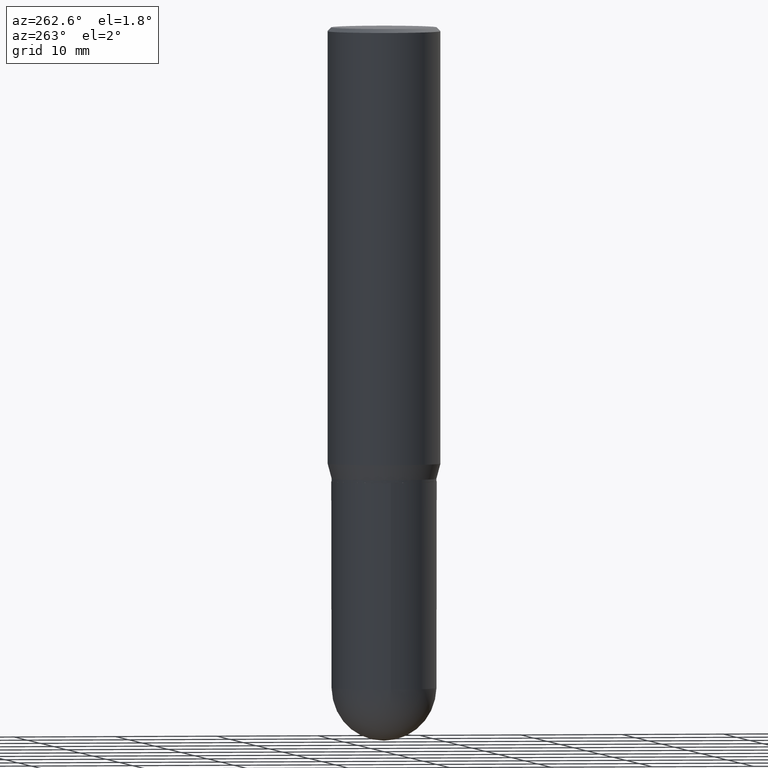
[diagram: clean part render]
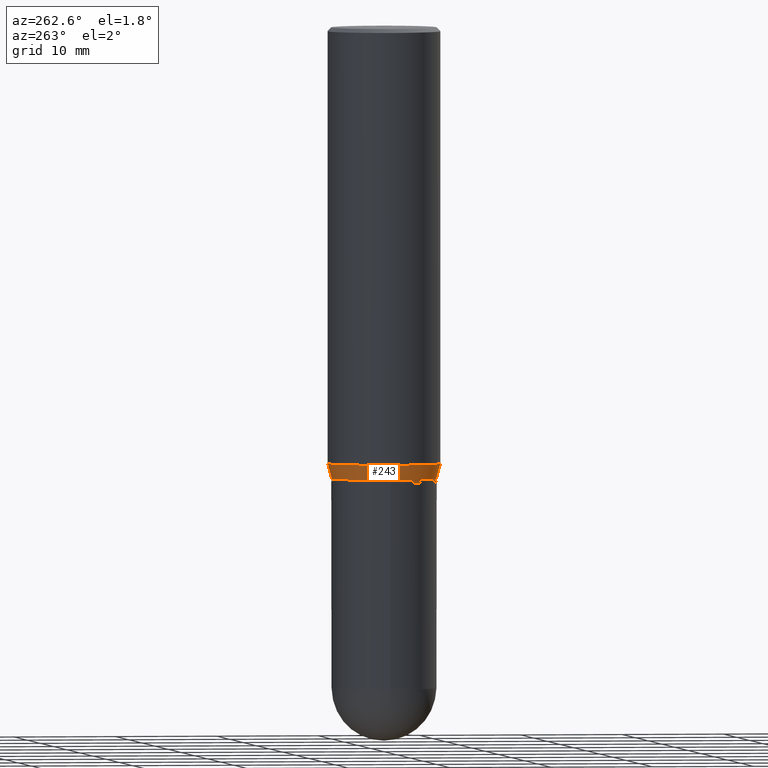
[diagram: same view with one face highlighted and labeled with its STEP entity id]
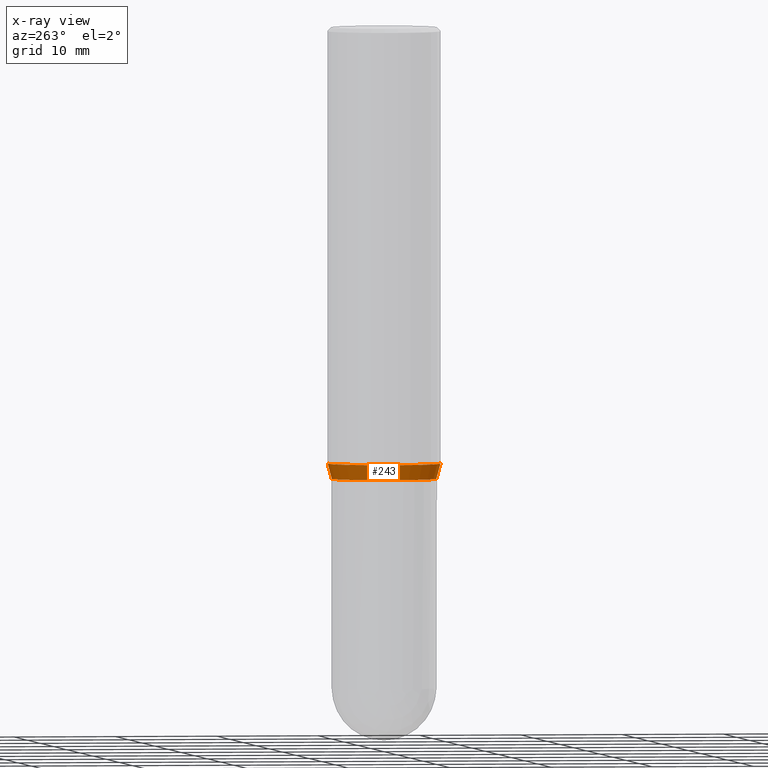
[diagram: x-ray of the same camera — body ghosted, the highlighted face saturated]
A machine part, auxiliary view. The second image highlights one B-rep face of the part: STEP entity #243.
The next image is the same camera in x-ray: the body ghosted, the highlighted face saturated — about 0% of this face is hidden behind the body in this view.
In plain terms, the highlighted conical surface has half-angle 15 deg.
Its self-contained STEP definition (entity closure, byte-faithful):
#5 = VERTEX_POINT ( 'NONE', #112 ) ;
#23 = DIRECTION ( 'NONE',  ( -6.982962677686265133E-15, -1.000000000000000000, 3.746534391310989557E-15 ) ) ;
#33 = EDGE_LOOP ( 'NONE', ( #324, #127, #103, #170 ) ) ;
#73 = CARTESIAN_POINT ( 'NONE',  ( 1.443112296328805307E-15, 0.2030999999999938688, -1.740000000000000879 ) ) ;
#94 = EDGE_CURVE ( 'NONE', #430, #100, #268, .T. ) ;
#100 = VERTEX_POINT ( 'NONE', #177 ) ;
#102 = CARTESIAN_POINT ( 'NONE',  ( -1.418239719838037782E-15, -0.2031000000000060257, -1.739999999999999103 ) ) ;
#103 = ORIENTED_EDGE ( 'NONE', *, *, #201, .T. ) ;
#104 = EDGE_CURVE ( 'NONE', #100, #279, #316, .T. ) ;
#112 = CARTESIAN_POINT ( 'NONE',  ( -1.418239719838037782E-15, -0.2031000000000060257, -1.739999999999999103 ) ) ;
#127 = ORIENTED_EDGE ( 'NONE', *, *, #269, .T. ) ;
#157 = DIRECTION ( 'NONE',  ( -6.982962677686266711E-15, -1.000000000000000000, 4.035225987687243463E-15 ) ) ;
#164 = AXIS2_PLACEMENT_3D ( 'NONE', #174, #457, #23 ) ;
#170 = ORIENTED_EDGE ( 'NONE', *, *, #104, .F. ) ;
#174 = CARTESIAN_POINT ( 'NONE',  ( 4.112392974780617648E-29, -5.871096244226413980E-15, -1.681593404861546848 ) ) ;
#177 = CARTESIAN_POINT ( 'NONE',  ( 1.554312234475260177E-15, 0.2187499999999941436, -1.681593404861547736 ) ) ;
#189 = VECTOR ( 'NONE', #427, 39.37007874015748854 ) ;
#196 = CARTESIAN_POINT ( 'NONE',  ( -1.527523085743829428E-15, -0.2187500000000058287, -1.681593404861545960 ) ) ;
#200 = VECTOR ( 'NONE', #378, 39.37007874015748143 ) ;
#201 = EDGE_CURVE ( 'NONE', #5, #279, #256, .T. ) ;
#218 = AXIS2_PLACEMENT_3D ( 'NONE', #465, #392, #350 ) ;
#243 = ADVANCED_FACE ( 'NONE', ( #390 ), #367, .T. ) ;
#256 = LINE ( 'NONE', #102, #189 ) ;
#268 = LINE ( 'NONE', #73, #200 ) ;
#269 = EDGE_CURVE ( 'NONE', #430, #5, #445, .T. ) ;
#279 = VERTEX_POINT ( 'NONE', #196 ) ;
#316 = CIRCLE ( 'NONE', #164, 0.2187500000000000000 ) ;
#324 = ORIENTED_EDGE ( 'NONE', *, *, #94, .F. ) ;
#350 = DIRECTION ( 'NONE',  ( -6.982962677686266711E-15, -1.000000000000000000, 4.035225987687243463E-15 ) ) ;
#367 = CONICAL_SURFACE ( 'NONE', #506, 0.2030999999999999472, 0.2617993877991492413 ) ;
#378 = DIRECTION ( 'NONE',  ( 1.839019923739593216E-15, 0.2588190451025239591, 0.9659258262890674240 ) ) ;
#390 = FACE_OUTER_BOUND ( 'NONE', #33, .T. ) ;
#392 = DIRECTION ( 'NONE',  ( -2.445533482048360723E-29, 3.491388719325887151E-15, 1.000000000000000000 ) ) ;
#427 = DIRECTION ( 'NONE',  ( -1.807323732225323040E-15, -0.2588190451025171868, 0.9659258262890693114 ) ) ;
#430 = VERTEX_POINT ( 'NONE', #481 ) ;
#445 = CIRCLE ( 'NONE', #218, 0.2030999999999999472 ) ;
#457 = DIRECTION ( 'NONE',  ( -2.445533482048360723E-29, 3.491388719325887151E-15, 1.000000000000000000 ) ) ;
#465 = CARTESIAN_POINT ( 'NONE',  ( 4.255228258764148112E-29, -6.075016371627043485E-15, -1.739999999999999991 ) ) ;
#478 = DIRECTION ( 'NONE',  ( -2.445533482048360723E-29, 3.491388719325887151E-15, 1.000000000000000000 ) ) ;
#481 = CARTESIAN_POINT ( 'NONE',  ( 1.498712265402032742E-15, 0.2030999999999938688, -1.740000000000000879 ) ) ;
#504 = CARTESIAN_POINT ( 'NONE',  ( 4.255228258764148112E-29, -6.075016371627043485E-15, -1.739999999999999991 ) ) ;
#506 = AXIS2_PLACEMENT_3D ( 'NONE', #504, #478, #157 ) ;